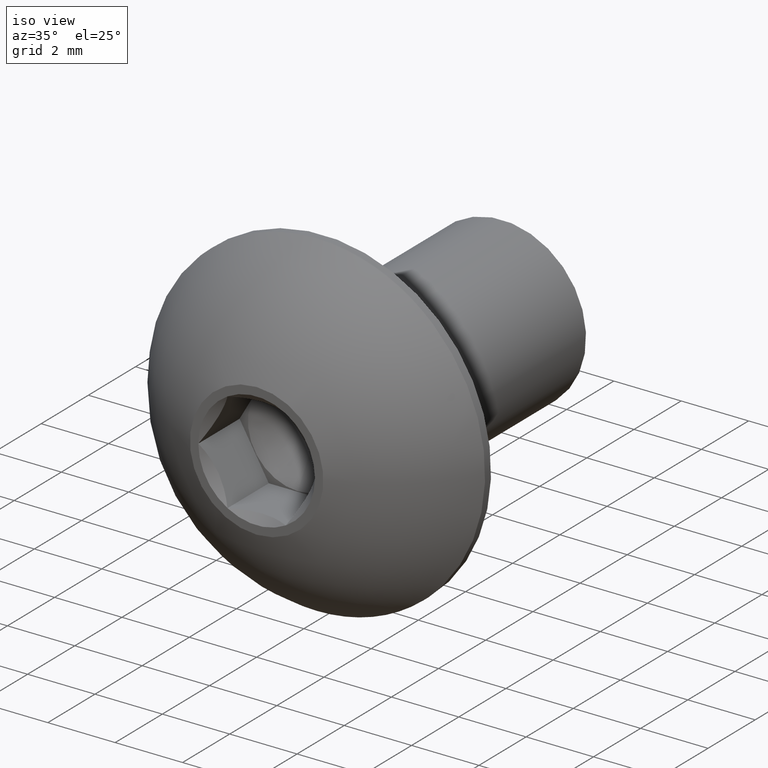
[diagram: clean part render]
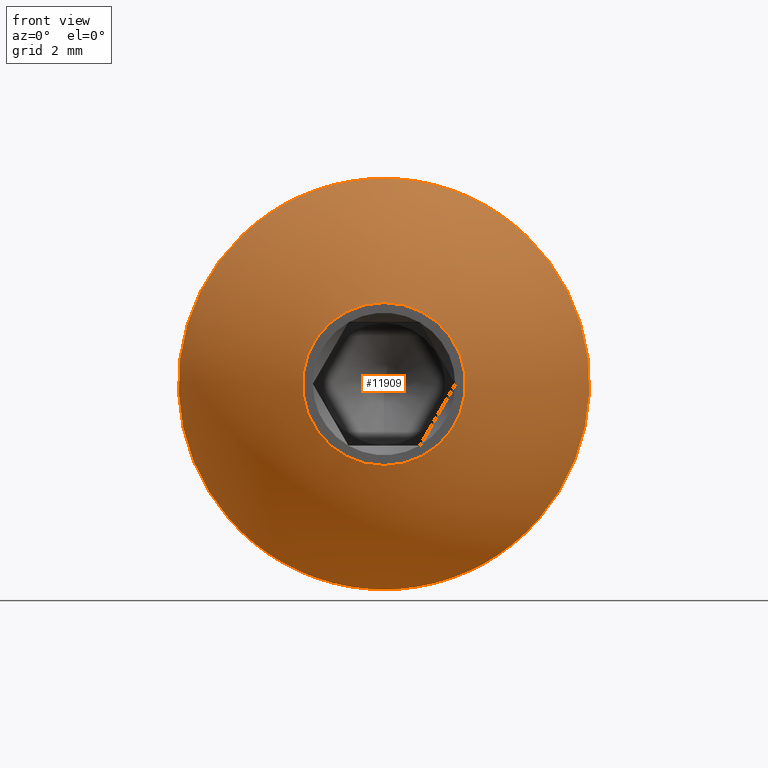
[diagram: tour spotlight — one face highlighted and labeled with its STEP entity id]
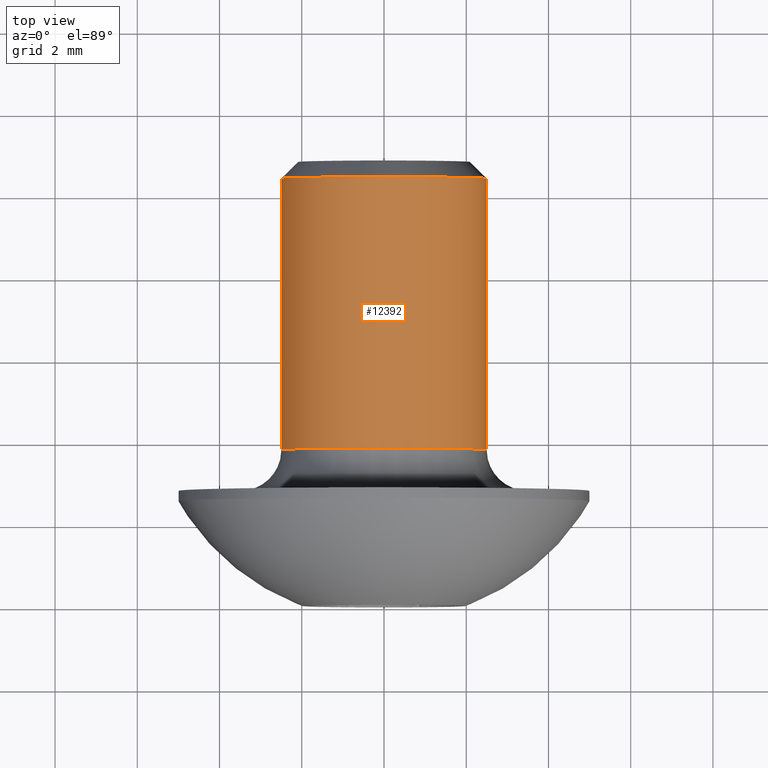
[diagram: tour spotlight — one face highlighted and labeled with its STEP entity id]
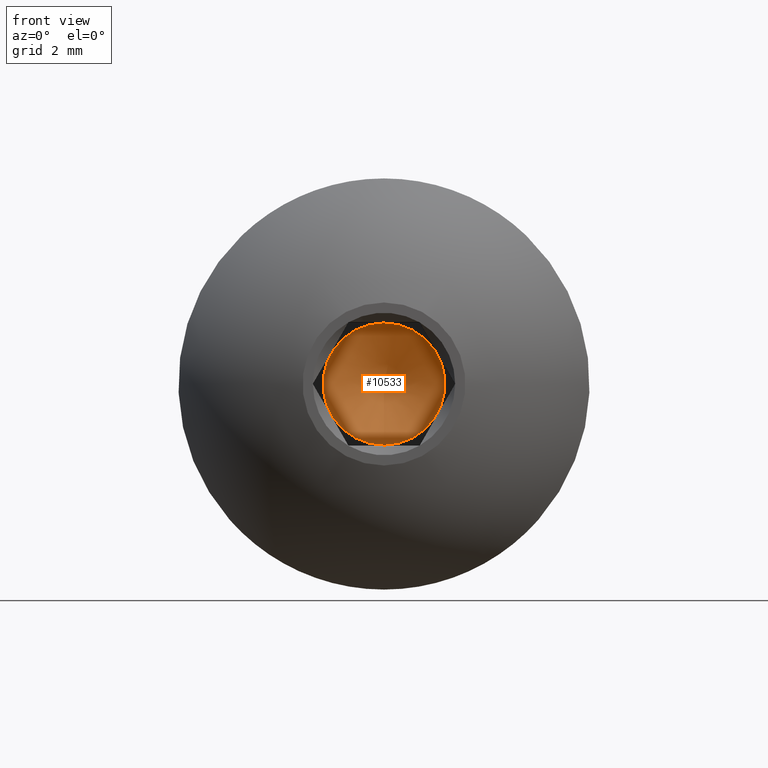
[diagram: tour spotlight — one face highlighted and labeled with its STEP entity id]
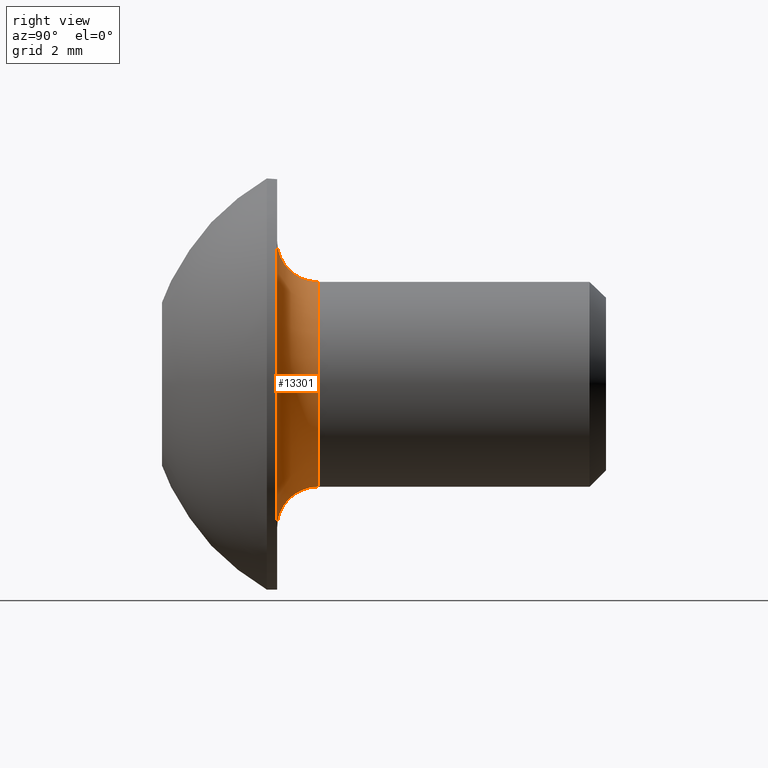
[diagram: tour spotlight — one face highlighted and labeled with its STEP entity id]
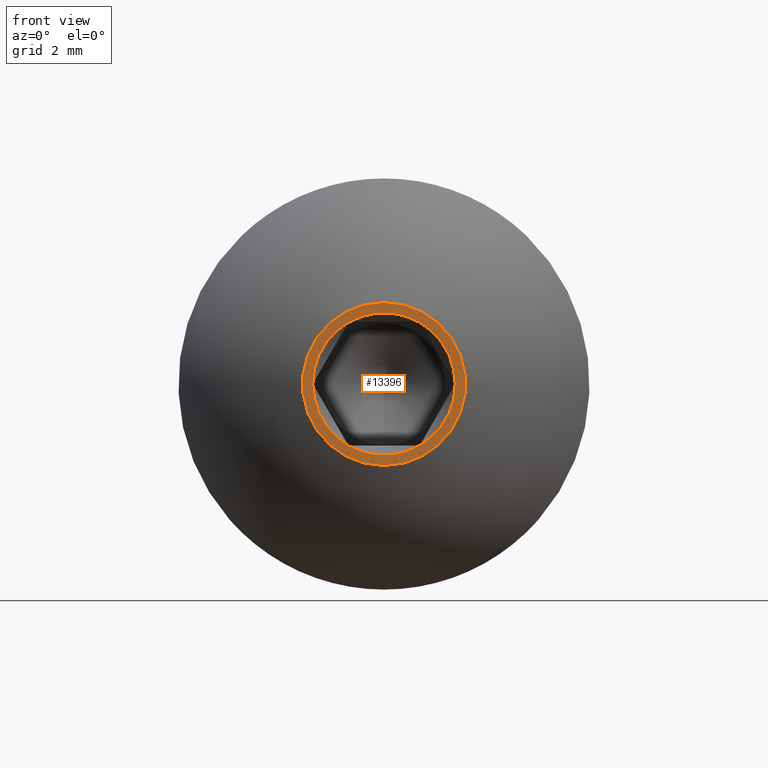
[diagram: tour spotlight — one face highlighted and labeled with its STEP entity id]
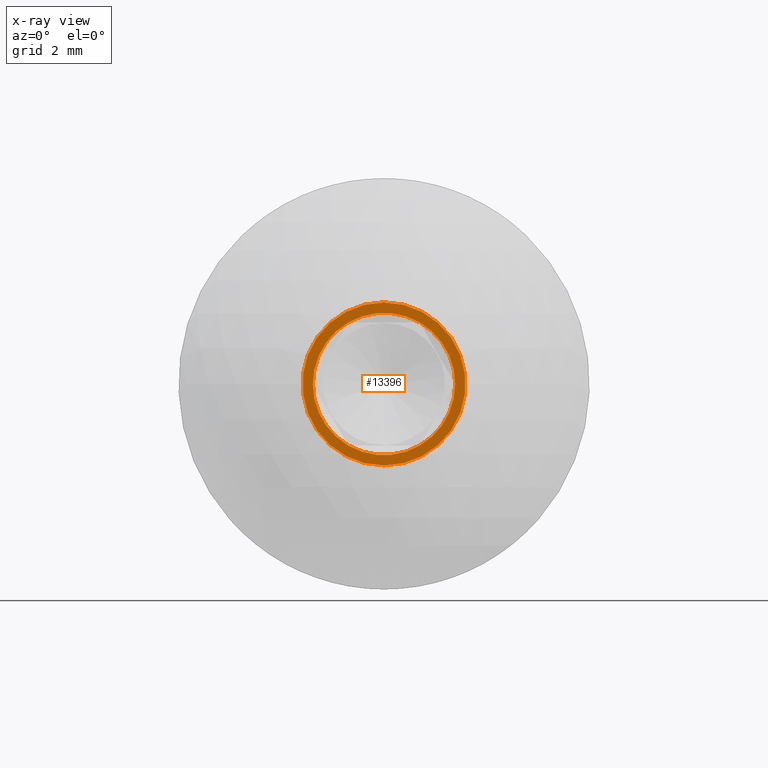
[diagram: x-ray of the same camera — body ghosted, this tour face saturated]
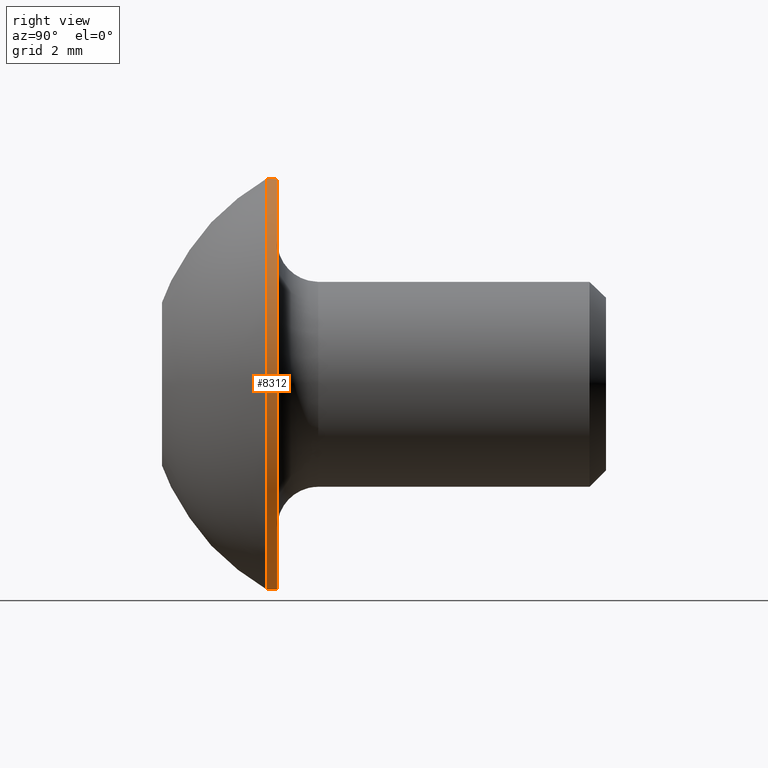
[diagram: tour spotlight — one face highlighted and labeled with its STEP entity id]
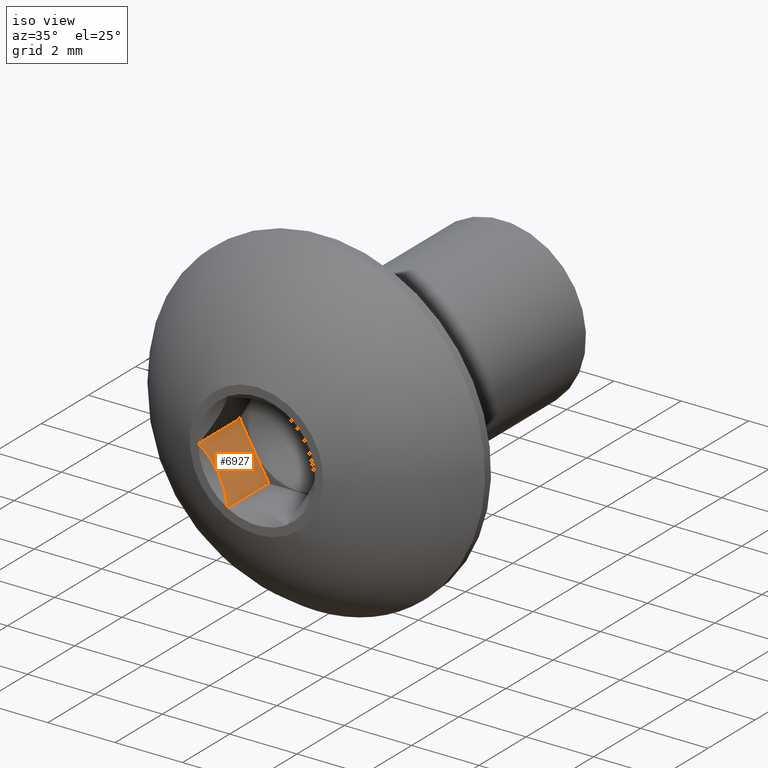
[diagram: tour spotlight — one face highlighted and labeled with its STEP entity id]
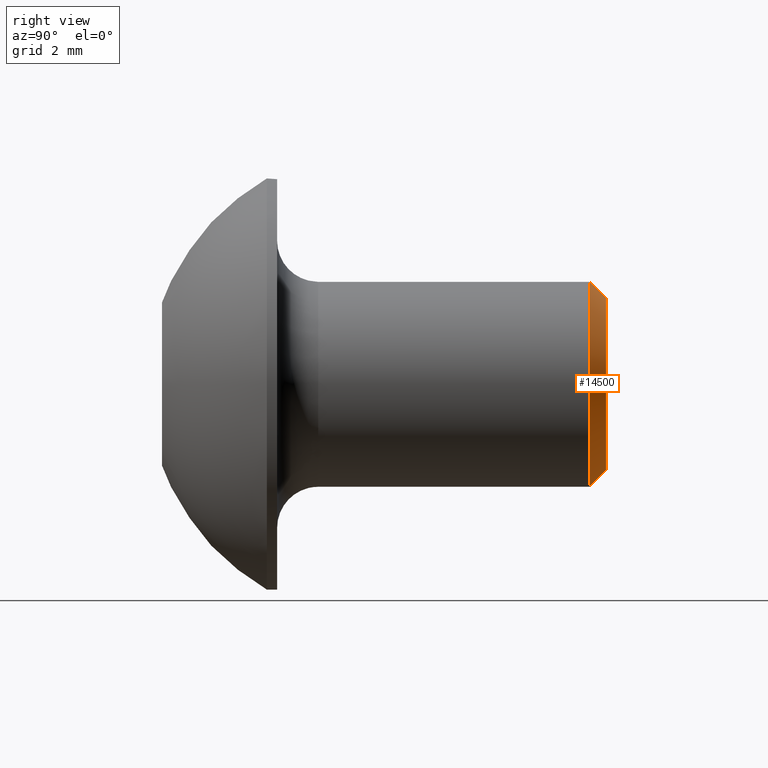
[diagram: tour spotlight — one face highlighted and labeled with its STEP entity id]
A machine part: a face-by-face anatomy tour. The part has 287 B-rep faces; the first image is the clean iso view, then the 8 largest visible faces are spotlighted one at a time (largest first), each with its STEP entity span.

Face 1 — front view, entity #11909. In plain terms, the highlighted spherical surface has radius 5.7585 mm.
Definition (entity closure, byte-faithful):
#693 = VERTEX_POINT ( 'NONE', #3875 ) ;
#1233 = DIRECTION ( 'NONE',  ( 0.000000000000000000, 0.000000000000000000, -1.000000000000000000 ) ) ;
#2593 = DIRECTION ( 'NONE',  ( -0.000000000000000000, -1.000000000000000000, -0.000000000000000000 ) ) ;
#2801 = AXIS2_PLACEMENT_3D ( 'NONE', #6918, #5661, #4408 ) ;
#2903 = ORIENTED_EDGE ( 'NONE', *, *, #12067, .F. ) ;
#3039 = EDGE_LOOP ( 'NONE', ( #6472 ) ) ;
#3362 = CARTESIAN_POINT ( 'NONE',  ( 0.000000000000000000, 5.406661685532460737, 0.000000000000000000 ) ) ;
#3875 = CARTESIAN_POINT ( 'NONE',  ( 0.000000000000000000, -8.673617379884035472E-16, -1.982050807568876305 ) ) ;
#4408 = DIRECTION ( 'NONE',  ( 0.000000000000000000, 0.000000000000000000, -1.000000000000000000 ) ) ;
#4484 = EDGE_LOOP ( 'NONE', ( #2903 ) ) ;
#4523 = AXIS2_PLACEMENT_3D ( 'NONE', #9674, #2593, #1233 ) ;
#4731 = FACE_OUTER_BOUND ( 'NONE', #3039, .T. ) ;
#5661 = DIRECTION ( 'NONE',  ( -0.000000000000000000, -1.000000000000000000, -0.000000000000000000 ) ) ;
#6020 = CIRCLE ( 'NONE', #4523, 1.982050807568876305 ) ;
#6472 = ORIENTED_EDGE ( 'NONE', *, *, #14634, .T. ) ;
#6918 = CARTESIAN_POINT ( 'NONE',  ( 0.000000000000000000, 2.550000000000000266, 0.000000000000000000 ) ) ;
#8220 = VERTEX_POINT ( 'NONE', #13431 ) ;
#9175 = DIRECTION ( 'NONE',  ( 0.000000000000000000, 0.000000000000000000, 1.000000000000000000 ) ) ;
#9674 = CARTESIAN_POINT ( 'NONE',  ( 0.000000000000000000, -8.673617379884035472E-16, 0.000000000000000000 ) ) ;
#10715 = SPHERICAL_SURFACE ( 'NONE', #14703, 5.758516821681530118 ) ;
#11909 = ADVANCED_FACE ( 'NONE', ( #4731, #13881 ), #10715, .T. ) ;
#11957 = CIRCLE ( 'NONE', #2801, 4.999999999999999112 ) ;
#12067 = EDGE_CURVE ( 'NONE', #693, #693, #6020, .T. ) ;
#12909 = DIRECTION ( 'NONE',  ( 1.000000000000000000, 0.000000000000000000, 0.000000000000000000 ) ) ;
#13431 = CARTESIAN_POINT ( 'NONE',  ( 0.000000000000000000, 2.550000000000000266, -4.999999999999999112 ) ) ;
#13881 = FACE_OUTER_BOUND ( 'NONE', #4484, .T. ) ;
#14634 = EDGE_CURVE ( 'NONE', #8220, #8220, #11957, .T. ) ;
#14703 = AXIS2_PLACEMENT_3D ( 'NONE', #3362, #9175, #12909 ) ;

Face 2 — top view, entity #12392. In plain terms, the highlighted cylindrical surface (bore or boss wall) has radius 2.5 mm, axis along (-0, -1, -0).
Definition (entity closure, byte-faithful):
#338 = DIRECTION ( 'NONE',  ( 0.000000000000000000, 1.000000000000000000, 0.000000000000000000 ) ) ;
#610 = DIRECTION ( 'NONE',  ( -0.000000000000000000, -1.000000000000000000, -0.000000000000000000 ) ) ;
#683 = EDGE_CURVE ( 'NONE', #9159, #9159, #7687, .T. ) ;
#1426 = CARTESIAN_POINT ( 'NONE',  ( 0.000000000000000000, 3.800000000000000266, 0.000000000000000000 ) ) ;
#2403 = CIRCLE ( 'NONE', #10035, 2.499999999999998668 ) ;
#2910 = DIRECTION ( 'NONE',  ( -0.000000000000000000, -1.000000000000000000, -0.000000000000000000 ) ) ;
#3438 = ORIENTED_EDGE ( 'NONE', *, *, #14737, .T. ) ;
#4419 = EDGE_LOOP ( 'NONE', ( #5832 ) ) ;
#5832 = ORIENTED_EDGE ( 'NONE', *, *, #683, .T. ) ;
#6585 = DIRECTION ( 'NONE',  ( 0.000000000000000000, 0.000000000000000000, -1.000000000000000000 ) ) ;
#6700 = VERTEX_POINT ( 'NONE', #14635 ) ;
#7080 = AXIS2_PLACEMENT_3D ( 'NONE', #11461, #610, #7809 ) ;
#7687 = CIRCLE ( 'NONE', #7080, 2.499999999999997780 ) ;
#7809 = DIRECTION ( 'NONE',  ( 0.000000000000000000, 0.000000000000000000, -1.000000000000000000 ) ) ;
#8779 = DIRECTION ( 'NONE',  ( 0.000000000000000000, 0.000000000000000000, -1.000000000000000000 ) ) ;
#8811 = FACE_OUTER_BOUND ( 'NONE', #4419, .T. ) ;
#9159 = VERTEX_POINT ( 'NONE', #11197 ) ;
#9570 = CYLINDRICAL_SURFACE ( 'NONE', #10428, 2.499999999999998668 ) ;
#10035 = AXIS2_PLACEMENT_3D ( 'NONE', #1426, #338, #8779 ) ;
#10428 = AXIS2_PLACEMENT_3D ( 'NONE', #13847, #2910, #6585 ) ;
#11197 = CARTESIAN_POINT ( 'NONE',  ( 0.000000000000000000, 10.39810000000000123, -2.499999999999997780 ) ) ;
#11461 = CARTESIAN_POINT ( 'NONE',  ( 0.000000000000000000, 10.39810000000000123, 0.000000000000000000 ) ) ;
#12392 = ADVANCED_FACE ( 'NONE', ( #14402, #8811 ), #9570, .T. ) ;
#13847 = CARTESIAN_POINT ( 'NONE',  ( 0.000000000000000000, 0.000000000000000000, 0.000000000000000000 ) ) ;
#14402 = FACE_OUTER_BOUND ( 'NONE', #15000, .T. ) ;
#14635 = CARTESIAN_POINT ( 'NONE',  ( 0.000000000000000000, 3.800000000000000266, -2.499999999999998668 ) ) ;
#14737 = EDGE_CURVE ( 'NONE', #6700, #6700, #2403, .T. ) ;
#15000 = EDGE_LOOP ( 'NONE', ( #3438 ) ) ;

Face 3 — front view, entity #10533. In plain terms, the highlighted conical surface has half-angle 59 deg.
Definition (entity closure, byte-faithful):
#791 = DIRECTION ( 'NONE',  ( 0.000000000000000000, 0.000000000000000000, -1.000000000000000000 ) ) ;
#1859 = DIRECTION ( 'NONE',  ( -0.000000000000000000, 1.000000000000000000, -0.000000000000000000 ) ) ;
#2066 = CIRCLE ( 'NONE', #3796, 1.484999999999999654 ) ;
#3603 = CONICAL_SURFACE ( 'NONE', #12988, 1.484999999999999432, 1.029744258676657420 ) ;
#3796 = AXIS2_PLACEMENT_3D ( 'NONE', #7867, #1859, #9013 ) ;
#4587 = DIRECTION ( 'NONE',  ( -0.000000000000000000, -1.000000000000000000, -0.000000000000000000 ) ) ;
#6664 = ORIENTED_EDGE ( 'NONE', *, *, #11824, .F. ) ;
#7867 = CARTESIAN_POINT ( 'NONE',  ( 0.000000000000000000, 1.749999999999999778, 0.000000000000000000 ) ) ;
#8295 = FACE_OUTER_BOUND ( 'NONE', #9110, .T. ) ;
#9013 = DIRECTION ( 'NONE',  ( 0.000000000000000000, 0.000000000000000000, -1.000000000000000000 ) ) ;
#9110 = EDGE_LOOP ( 'NONE', ( #6664 ) ) ;
#10533 = ADVANCED_FACE ( 'NONE', ( #8295 ), #3603, .F. ) ;
#11824 = EDGE_CURVE ( 'NONE', #13234, #13234, #2066, .T. ) ;
#12988 = AXIS2_PLACEMENT_3D ( 'NONE', #15230, #4587, #791 ) ;
#13234 = VERTEX_POINT ( 'NONE', #13373 ) ;
#13373 = CARTESIAN_POINT ( 'NONE',  ( 0.000000000000000000, 1.749999999999999778, -1.484999999999999654 ) ) ;
#15230 = CARTESIAN_POINT ( 'NONE',  ( 0.000000000000000000, 1.749999999999999556, 0.000000000000000000 ) ) ;

Face 4 — right view, entity #13301. In plain terms, the highlighted toroidal blend (fillet) surface has major radius 3.5 mm and minor (blend) radius 1 mm.
Definition (entity closure, byte-faithful):
#338 = DIRECTION ( 'NONE',  ( 0.000000000000000000, 1.000000000000000000, 0.000000000000000000 ) ) ;
#411 = EDGE_CURVE ( 'NONE', #9529, #9529, #4316, .T. ) ;
#1426 = CARTESIAN_POINT ( 'NONE',  ( 0.000000000000000000, 3.800000000000000266, 0.000000000000000000 ) ) ;
#1434 = CARTESIAN_POINT ( 'NONE',  ( 0.000000000000000000, 2.800000000000000266, 0.000000000000000000 ) ) ;
#2403 = CIRCLE ( 'NONE', #10035, 2.499999999999998668 ) ;
#2451 = EDGE_LOOP ( 'NONE', ( #13879 ) ) ;
#2653 = DIRECTION ( 'NONE',  ( 0.000000000000000000, 0.000000000000000000, -1.000000000000000000 ) ) ;
#3390 = TOROIDAL_SURFACE ( 'NONE', #13306, 3.499999999999998668, 1.000000000000000000 ) ;
#3753 = FACE_OUTER_BOUND ( 'NONE', #10044, .T. ) ;
#4316 = CIRCLE ( 'NONE', #5361, 3.499999999999998668 ) ;
#4839 = ORIENTED_EDGE ( 'NONE', *, *, #411, .F. ) ;
#5361 = AXIS2_PLACEMENT_3D ( 'NONE', #1434, #9839, #2653 ) ;
#6700 = VERTEX_POINT ( 'NONE', #14635 ) ;
#6952 = FACE_OUTER_BOUND ( 'NONE', #2451, .T. ) ;
#8779 = DIRECTION ( 'NONE',  ( 0.000000000000000000, 0.000000000000000000, -1.000000000000000000 ) ) ;
#9529 = VERTEX_POINT ( 'NONE', #11140 ) ;
#9839 = DIRECTION ( 'NONE',  ( -0.000000000000000000, -1.000000000000000000, -0.000000000000000000 ) ) ;
#10035 = AXIS2_PLACEMENT_3D ( 'NONE', #1426, #338, #8779 ) ;
#10044 = EDGE_LOOP ( 'NONE', ( #4839 ) ) ;
#11140 = CARTESIAN_POINT ( 'NONE',  ( 0.000000000000000000, 2.800000000000000266, -3.499999999999998668 ) ) ;
#11248 = DIRECTION ( 'NONE',  ( -0.000000000000000000, -1.000000000000000000, -0.000000000000000000 ) ) ;
#13301 = ADVANCED_FACE ( 'NONE', ( #6952, #3753 ), #3390, .F. ) ;
#13306 = AXIS2_PLACEMENT_3D ( 'NONE', #14785, #11248, #13532 ) ;
#13532 = DIRECTION ( 'NONE',  ( 0.000000000000000000, 0.000000000000000000, -1.000000000000000000 ) ) ;
#13879 = ORIENTED_EDGE ( 'NONE', *, *, #14737, .F. ) ;
#14635 = CARTESIAN_POINT ( 'NONE',  ( 0.000000000000000000, 3.800000000000000266, -2.499999999999998668 ) ) ;
#14737 = EDGE_CURVE ( 'NONE', #6700, #6700, #2403, .T. ) ;
#14785 = CARTESIAN_POINT ( 'NONE',  ( 0.000000000000000000, 3.800000000000000266, 0.000000000000000000 ) ) ;

Face 5 — front view, entity #13396. An x-ray twin of the same camera follows (body ghosted, this face saturated) — the face is partly hidden behind the body. In plain terms, the highlighted planar face has unit normal (0, 1, 0).
Definition (entity closure, byte-faithful):
#265 = AXIS2_PLACEMENT_3D ( 'NONE', #13370, #6225, #14582 ) ;
#287 = CARTESIAN_POINT ( 'NONE',  ( 0.8660254037844150599, 0.000000000000000000, -1.500000000000013545 ) ) ;
#693 = VERTEX_POINT ( 'NONE', #3875 ) ;
#718 = CARTESIAN_POINT ( 'NONE',  ( 1.982050807568877193, -4.336808689942017736E-16, 0.000000000000000000 ) ) ;
#962 = ORIENTED_EDGE ( 'NONE', *, *, #12067, .T. ) ;
#966 = CARTESIAN_POINT ( 'NONE',  ( 0.000000000000000000, 0.000000000000000000, 0.000000000000000000 ) ) ;
#1233 = DIRECTION ( 'NONE',  ( 0.000000000000000000, 0.000000000000000000, -1.000000000000000000 ) ) ;
#1962 = DIRECTION ( 'NONE',  ( 0.000000000000000000, -0.000000000000000000, 1.000000000000000000 ) ) ;
#1990 = AXIS2_PLACEMENT_3D ( 'NONE', #3745, #9712, #6042 ) ;
#1996 = DIRECTION ( 'NONE',  ( 0.000000000000000000, 0.000000000000000000, -1.000000000000000000 ) ) ;
#2593 = DIRECTION ( 'NONE',  ( -0.000000000000000000, -1.000000000000000000, -0.000000000000000000 ) ) ;
#2611 = FACE_BOUND ( 'NONE', #3365, .T. ) ;
#2884 = VERTEX_POINT ( 'NONE', #7613 ) ;
#3365 = EDGE_LOOP ( 'NONE', ( #14349, #6910, #3556, #12176, #12280, #8904 ) ) ;
#3556 = ORIENTED_EDGE ( 'NONE', *, *, #9064, .F. ) ;
#3745 = CARTESIAN_POINT ( 'NONE',  ( 0.000000000000000000, 0.000000000000000000, 0.000000000000000000 ) ) ;
#3875 = CARTESIAN_POINT ( 'NONE',  ( 0.000000000000000000, -8.673617379884035472E-16, -1.982050807568876305 ) ) ;
#4038 = DIRECTION ( 'NONE',  ( -0.000000000000000000, -1.000000000000000000, -0.000000000000000000 ) ) ;
#4264 = VERTEX_POINT ( 'NONE', #12807 ) ;
#4461 = EDGE_CURVE ( 'NONE', #2884, #8349, #11365, .T. ) ;
#4523 = AXIS2_PLACEMENT_3D ( 'NONE', #9674, #2593, #1233 ) ;
#4621 = CIRCLE ( 'NONE', #8882, 1.732050807568877193 ) ;
#4778 = DIRECTION ( 'NONE',  ( 0.000000000000000000, 0.000000000000000000, -1.000000000000000000 ) ) ;
#4901 = AXIS2_PLACEMENT_3D ( 'NONE', #9439, #14115, #4778 ) ;
#5232 = EDGE_CURVE ( 'NONE', #8579, #8466, #4621, .T. ) ;
#5823 = AXIS2_PLACEMENT_3D ( 'NONE', #718, #6856, #1962 ) ;
#6020 = CIRCLE ( 'NONE', #4523, 1.982050807568876305 ) ;
#6042 = DIRECTION ( 'NONE',  ( 0.000000000000000000, 0.000000000000000000, -1.000000000000000000 ) ) ;
#6225 = DIRECTION ( 'NONE',  ( -0.000000000000000000, -1.000000000000000000, -0.000000000000000000 ) ) ;
#6607 = CIRCLE ( 'NONE', #265, 1.732050807568877193 ) ;
#6750 = PLANE ( 'NONE',  #5823 ) ;
#6856 = DIRECTION ( 'NONE',  ( 0.000000000000000000, 1.000000000000000000, 0.000000000000000000 ) ) ;
#6910 = ORIENTED_EDGE ( 'NONE', *, *, #9750, .F. ) ;
#7187 = CIRCLE ( 'NONE', #13894, 1.732050807568877193 ) ;
#7334 = AXIS2_PLACEMENT_3D ( 'NONE', #966, #10509, #10559 ) ;
#7613 = CARTESIAN_POINT ( 'NONE',  ( 0.8660254037844224984, 0.000000000000000000, 1.500000000000000000 ) ) ;
#8116 = CARTESIAN_POINT ( 'NONE',  ( -1.732050807568855655, 0.000000000000000000, 3.165181590144409173E-16 ) ) ;
#8349 = VERTEX_POINT ( 'NONE', #11976 ) ;
#8466 = VERTEX_POINT ( 'NONE', #11079 ) ;
#8579 = VERTEX_POINT ( 'NONE', #287 ) ;
#8594 = CIRCLE ( 'NONE', #1990, 1.732050807568877193 ) ;
#8746 = CARTESIAN_POINT ( 'NONE',  ( 0.000000000000000000, 0.000000000000000000, 0.000000000000000000 ) ) ;
#8882 = AXIS2_PLACEMENT_3D ( 'NONE', #8746, #4038, #11258 ) ;
#8904 = ORIENTED_EDGE ( 'NONE', *, *, #15068, .F. ) ;
#9064 = EDGE_CURVE ( 'NONE', #11129, #4264, #7187, .T. ) ;
#9439 = CARTESIAN_POINT ( 'NONE',  ( 0.000000000000000000, 0.000000000000000000, 0.000000000000000000 ) ) ;
#9674 = CARTESIAN_POINT ( 'NONE',  ( 0.000000000000000000, -8.673617379884035472E-16, 0.000000000000000000 ) ) ;
#9712 = DIRECTION ( 'NONE',  ( -0.000000000000000000, -1.000000000000000000, -0.000000000000000000 ) ) ;
#9750 = EDGE_CURVE ( 'NONE', #4264, #8579, #6607, .T. ) ;
#10317 = FACE_OUTER_BOUND ( 'NONE', #14119, .T. ) ;
#10509 = DIRECTION ( 'NONE',  ( -0.000000000000000000, -1.000000000000000000, -0.000000000000000000 ) ) ;
#10559 = DIRECTION ( 'NONE',  ( 0.000000000000000000, 0.000000000000000000, -1.000000000000000000 ) ) ;
#11079 = CARTESIAN_POINT ( 'NONE',  ( 1.732050807568856099, 0.000000000000000000, -1.077119364755166471E-16 ) ) ;
#11129 = VERTEX_POINT ( 'NONE', #8116 ) ;
#11258 = DIRECTION ( 'NONE',  ( 0.000000000000000000, 0.000000000000000000, -1.000000000000000000 ) ) ;
#11365 = CIRCLE ( 'NONE', #4901, 1.732050807568877193 ) ;
#11683 = DIRECTION ( 'NONE',  ( -0.000000000000000000, -1.000000000000000000, -0.000000000000000000 ) ) ;
#11976 = CARTESIAN_POINT ( 'NONE',  ( -0.8660254037844525854, 0.000000000000000000, 1.500000000000000000 ) ) ;
#12067 = EDGE_CURVE ( 'NONE', #693, #693, #6020, .T. ) ;
#12176 = ORIENTED_EDGE ( 'NONE', *, *, #14930, .F. ) ;
#12280 = ORIENTED_EDGE ( 'NONE', *, *, #4461, .F. ) ;
#12807 = CARTESIAN_POINT ( 'NONE',  ( -0.8660254037844525854, 0.000000000000000000, -1.500000000000000444 ) ) ;
#13370 = CARTESIAN_POINT ( 'NONE',  ( 0.000000000000000000, 0.000000000000000000, 0.000000000000000000 ) ) ;
#13396 = ADVANCED_FACE ( 'NONE', ( #2611, #10317 ), #6750, .F. ) ;
#13894 = AXIS2_PLACEMENT_3D ( 'NONE', #15294, #11683, #1996 ) ;
#14115 = DIRECTION ( 'NONE',  ( -0.000000000000000000, -1.000000000000000000, -0.000000000000000000 ) ) ;
#14119 = EDGE_LOOP ( 'NONE', ( #962 ) ) ;
#14349 = ORIENTED_EDGE ( 'NONE', *, *, #5232, .F. ) ;
#14582 = DIRECTION ( 'NONE',  ( 0.000000000000000000, 0.000000000000000000, -1.000000000000000000 ) ) ;
#14930 = EDGE_CURVE ( 'NONE', #8349, #11129, #15327, .T. ) ;
#15068 = EDGE_CURVE ( 'NONE', #8466, #2884, #8594, .T. ) ;
#15294 = CARTESIAN_POINT ( 'NONE',  ( 0.000000000000000000, 0.000000000000000000, 0.000000000000000000 ) ) ;
#15327 = CIRCLE ( 'NONE', #7334, 1.732050807568877193 ) ;

Face 6 — right view, entity #8312. In plain terms, the highlighted cylindrical surface (bore or boss wall) has radius 5 mm, axis along (-0, -1, -0).
Definition (entity closure, byte-faithful):
#1104 = DIRECTION ( 'NONE',  ( 0.000000000000000000, 0.000000000000000000, -1.000000000000000000 ) ) ;
#1247 = ORIENTED_EDGE ( 'NONE', *, *, #9655, .T. ) ;
#1842 = AXIS2_PLACEMENT_3D ( 'NONE', #8432, #11927, #1104 ) ;
#2801 = AXIS2_PLACEMENT_3D ( 'NONE', #6918, #5661, #4408 ) ;
#3984 = CIRCLE ( 'NONE', #8125, 4.999999999999999112 ) ;
#4408 = DIRECTION ( 'NONE',  ( 0.000000000000000000, 0.000000000000000000, -1.000000000000000000 ) ) ;
#5039 = CARTESIAN_POINT ( 'NONE',  ( 0.000000000000000000, 2.799999999999999822, -4.999999999999999112 ) ) ;
#5082 = CARTESIAN_POINT ( 'NONE',  ( 0.000000000000000000, 2.799999999999999822, 0.000000000000000000 ) ) ;
#5129 = DIRECTION ( 'NONE',  ( 0.000000000000000000, 0.000000000000000000, -1.000000000000000000 ) ) ;
#5661 = DIRECTION ( 'NONE',  ( -0.000000000000000000, -1.000000000000000000, -0.000000000000000000 ) ) ;
#5887 = EDGE_LOOP ( 'NONE', ( #1247 ) ) ;
#6918 = CARTESIAN_POINT ( 'NONE',  ( 0.000000000000000000, 2.550000000000000266, 0.000000000000000000 ) ) ;
#7108 = VERTEX_POINT ( 'NONE', #5039 ) ;
#7207 = EDGE_LOOP ( 'NONE', ( #14602 ) ) ;
#8125 = AXIS2_PLACEMENT_3D ( 'NONE', #5082, #9891, #5129 ) ;
#8220 = VERTEX_POINT ( 'NONE', #13431 ) ;
#8312 = ADVANCED_FACE ( 'NONE', ( #13156, #14464 ), #11498, .T. ) ;
#8432 = CARTESIAN_POINT ( 'NONE',  ( 0.000000000000000000, 0.000000000000000000, 0.000000000000000000 ) ) ;
#9655 = EDGE_CURVE ( 'NONE', #7108, #7108, #3984, .T. ) ;
#9891 = DIRECTION ( 'NONE',  ( -0.000000000000000000, -1.000000000000000000, -0.000000000000000000 ) ) ;
#11498 = CYLINDRICAL_SURFACE ( 'NONE', #1842, 4.999999999999999112 ) ;
#11927 = DIRECTION ( 'NONE',  ( -0.000000000000000000, -1.000000000000000000, -0.000000000000000000 ) ) ;
#11957 = CIRCLE ( 'NONE', #2801, 4.999999999999999112 ) ;
#13156 = FACE_OUTER_BOUND ( 'NONE', #7207, .T. ) ;
#13431 = CARTESIAN_POINT ( 'NONE',  ( 0.000000000000000000, 2.550000000000000266, -4.999999999999999112 ) ) ;
#14464 = FACE_OUTER_BOUND ( 'NONE', #5887, .T. ) ;
#14602 = ORIENTED_EDGE ( 'NONE', *, *, #14634, .F. ) ;
#14634 = EDGE_CURVE ( 'NONE', #8220, #8220, #11957, .T. ) ;

Face 7 — iso view, entity #6927. In plain terms, the highlighted planar face has unit normal (0.866, 0, 0.5).
Definition (entity closure, byte-faithful):
#49 = LINE ( 'NONE', #3614, #419 ) ;
#360 = PLANE ( 'NONE',  #4376 ) ;
#405 = DIRECTION ( 'NONE',  ( 0.4999999999999844569, 0.000000000000000000, -0.8660254037844477004 ) ) ;
#419 = VECTOR ( 'NONE', #6419, 1000.000000000000000 ) ;
#1480 = ORIENTED_EDGE ( 'NONE', *, *, #3053, .T. ) ;
#1700 = CARTESIAN_POINT ( 'NONE',  ( -1.664386866925729125, 0.06766394064314885937, -0.1171973830342236123 ) ) ;
#2041 = LINE ( 'NONE', #14805, #8987 ) ;
#2854 = ORIENTED_EDGE ( 'NONE', *, *, #12505, .T. ) ;
#2937 = CARTESIAN_POINT ( 'NONE',  ( -1.595196451512780778, 0.1251953571450814262, -0.2370386979262526506 ) ) ;
#3053 = EDGE_CURVE ( 'NONE', #11129, #4264, #4636, .T. ) ;
#3335 = CARTESIAN_POINT ( 'NONE',  ( -1.732050807568855655, 1.749999999999999778, 3.165181590144409173E-16 ) ) ;
#3614 = CARTESIAN_POINT ( 'NONE',  ( -0.8660254037844525854, 1.749999999999999778, -1.500000000000000444 ) ) ;
#3897 = ORIENTED_EDGE ( 'NONE', *, *, #14036, .F. ) ;
#4264 = VERTEX_POINT ( 'NONE', #12807 ) ;
#4376 = AXIS2_PLACEMENT_3D ( 'NONE', #6507, #7820, #405 ) ;
#4636 = B_SPLINE_CURVE_WITH_KNOTS ( 'NONE', 3,
 ( #7817, #1700, #2937, #12647, #7870, #11312, #9069, #5508 ),
 .UNSPECIFIED., .F., .F.,
 ( 4, 2, 2, 4 ),
 ( 2.544365555359135546E-07, 0.0004475380576734484654, 0.0008948216787913610814, 0.001789388921027186205 ),
 .UNSPECIFIED. ) ;
#5059 = DIRECTION ( 'NONE',  ( 0.000000000000000000, -1.000000000000000000, 0.000000000000000000 ) ) ;
#5131 = VERTEX_POINT ( 'NONE', #9799 ) ;
#5508 = CARTESIAN_POINT ( 'NONE',  ( -0.8660254037844525854, 0.000000000000000000, -1.500000000000000444 ) ) ;
#6203 = LINE ( 'NONE', #3335, #6583 ) ;
#6419 = DIRECTION ( 'NONE',  ( -0.4999999999999844569, 0.000000000000000000, 0.8660254037844475894 ) ) ;
#6507 = CARTESIAN_POINT ( 'NONE',  ( -0.8660254037844525854, 1.749999999999999778, -1.500000000000000444 ) ) ;
#6583 = VECTOR ( 'NONE', #11544, 1000.000000000000000 ) ;
#6927 = ADVANCED_FACE ( 'NONE', ( #13002 ), #360, .T. ) ;
#7817 = CARTESIAN_POINT ( 'NONE',  ( -1.732050807568855655, 0.000000000000000000, 3.165181590144409173E-16 ) ) ;
#7820 = DIRECTION ( 'NONE',  ( 0.8660254037844477004, 0.000000000000000000, 0.4999999999999844569 ) ) ;
#7870 = CARTESIAN_POINT ( 'NONE',  ( -1.376235154422039697, 0.2317258303996848068, -0.6162907893786158109 ) ) ;
#8116 = CARTESIAN_POINT ( 'NONE',  ( -1.732050807568855655, 0.000000000000000000, 3.165181590144409173E-16 ) ) ;
#8375 = EDGE_CURVE ( 'NONE', #12612, #5131, #49, .T. ) ;
#8987 = VECTOR ( 'NONE', #5059, 1000.000000000000000 ) ;
#9069 = CARTESIAN_POINT ( 'NONE',  ( -1.002151428125750199, 0.1361260243418956073, -1.264222809608505305 ) ) ;
#9799 = CARTESIAN_POINT ( 'NONE',  ( -1.732050807568855655, 1.749999999999999778, 3.165181590144409173E-16 ) ) ;
#11129 = VERTEX_POINT ( 'NONE', #8116 ) ;
#11312 = CARTESIAN_POINT ( 'NONE',  ( -1.149429382477831885, 0.2326905842268657820, -1.009129909835880357 ) ) ;
#11544 = DIRECTION ( 'NONE',  ( 0.000000000000000000, -1.000000000000000000, 0.000000000000000000 ) ) ;
#12293 = EDGE_LOOP ( 'NONE', ( #1480, #3897, #13208, #2854 ) ) ;
#12505 = EDGE_CURVE ( 'NONE', #5131, #11129, #6203, .T. ) ;
#12612 = VERTEX_POINT ( 'NONE', #14333 ) ;
#12647 = CARTESIAN_POINT ( 'NONE',  ( -1.451865029342864766, 0.2073968633204764378, -0.4852960034456609284 ) ) ;
#12807 = CARTESIAN_POINT ( 'NONE',  ( -0.8660254037844525854, 0.000000000000000000, -1.500000000000000444 ) ) ;
#13002 = FACE_OUTER_BOUND ( 'NONE', #12293, .T. ) ;
#13208 = ORIENTED_EDGE ( 'NONE', *, *, #8375, .T. ) ;
#14036 = EDGE_CURVE ( 'NONE', #12612, #4264, #2041, .T. ) ;
#14333 = CARTESIAN_POINT ( 'NONE',  ( -0.8660254037844525854, 1.749999999999999778, -1.500000000000000444 ) ) ;
#14805 = CARTESIAN_POINT ( 'NONE',  ( -0.8660254037844525854, 1.749999999999999778, -1.500000000000000444 ) ) ;

Face 8 — right view, entity #14500. In plain terms, the highlighted conical surface has half-angle 45 deg.
Definition (entity closure, byte-faithful):
#148 = CONICAL_SURFACE ( 'NONE', #5732, 2.098100000000006293, 0.7853981633974375098 ) ;
#198 = EDGE_LOOP ( 'NONE', ( #9506 ) ) ;
#610 = DIRECTION ( 'NONE',  ( -0.000000000000000000, -1.000000000000000000, -0.000000000000000000 ) ) ;
#668 = DIRECTION ( 'NONE',  ( -0.000000000000000000, -1.000000000000000000, -0.000000000000000000 ) ) ;
#683 = EDGE_CURVE ( 'NONE', #9159, #9159, #7687, .T. ) ;
#1645 = CARTESIAN_POINT ( 'NONE',  ( 0.000000000000000000, 10.80000000000000071, -2.098100000000006293 ) ) ;
#4354 = CARTESIAN_POINT ( 'NONE',  ( 0.000000000000000000, 10.80000000000000071, 0.000000000000000000 ) ) ;
#5732 = AXIS2_PLACEMENT_3D ( 'NONE', #4354, #668, #11360 ) ;
#7080 = AXIS2_PLACEMENT_3D ( 'NONE', #11461, #610, #7809 ) ;
#7687 = CIRCLE ( 'NONE', #7080, 2.499999999999997780 ) ;
#7809 = DIRECTION ( 'NONE',  ( 0.000000000000000000, 0.000000000000000000, -1.000000000000000000 ) ) ;
#8439 = CIRCLE ( 'NONE', #11221, 2.098100000000006293 ) ;
#8500 = CARTESIAN_POINT ( 'NONE',  ( 0.000000000000000000, 10.80000000000000071, 0.000000000000000000 ) ) ;
#8610 = DIRECTION ( 'NONE',  ( -0.000000000000000000, -1.000000000000000000, -0.000000000000000000 ) ) ;
#9159 = VERTEX_POINT ( 'NONE', #11197 ) ;
#9506 = ORIENTED_EDGE ( 'NONE', *, *, #683, .F. ) ;
#10098 = FACE_BOUND ( 'NONE', #13185, .T. ) ;
#10183 = ORIENTED_EDGE ( 'NONE', *, *, #12652, .T. ) ;
#11197 = CARTESIAN_POINT ( 'NONE',  ( 0.000000000000000000, 10.39810000000000123, -2.499999999999997780 ) ) ;
#11221 = AXIS2_PLACEMENT_3D ( 'NONE', #8500, #8610, #14601 ) ;
#11360 = DIRECTION ( 'NONE',  ( 0.000000000000000000, 0.000000000000000000, -1.000000000000000000 ) ) ;
#11461 = CARTESIAN_POINT ( 'NONE',  ( 0.000000000000000000, 10.39810000000000123, 0.000000000000000000 ) ) ;
#12503 = FACE_OUTER_BOUND ( 'NONE', #198, .T. ) ;
#12652 = EDGE_CURVE ( 'NONE', #14546, #14546, #8439, .T. ) ;
#13185 = EDGE_LOOP ( 'NONE', ( #10183 ) ) ;
#14500 = ADVANCED_FACE ( 'NONE', ( #12503, #10098 ), #148, .T. ) ;
#14546 = VERTEX_POINT ( 'NONE', #1645 ) ;
#14601 = DIRECTION ( 'NONE',  ( 0.000000000000000000, 0.000000000000000000, -1.000000000000000000 ) ) ;